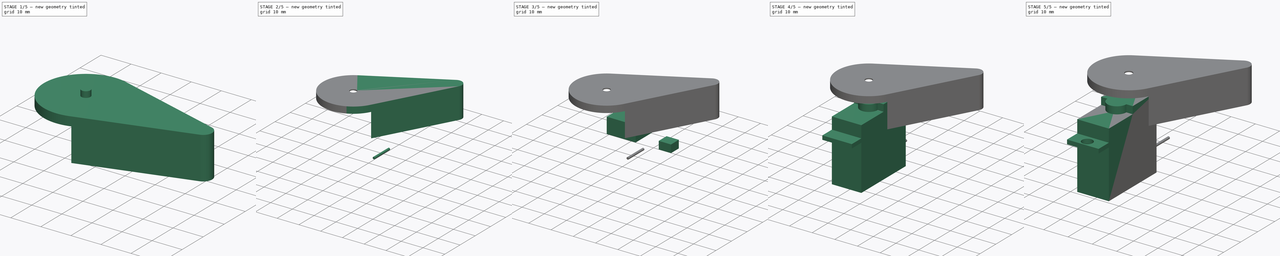
[diagram: build sequence overview — one tinted view per stage of 5, left to right]
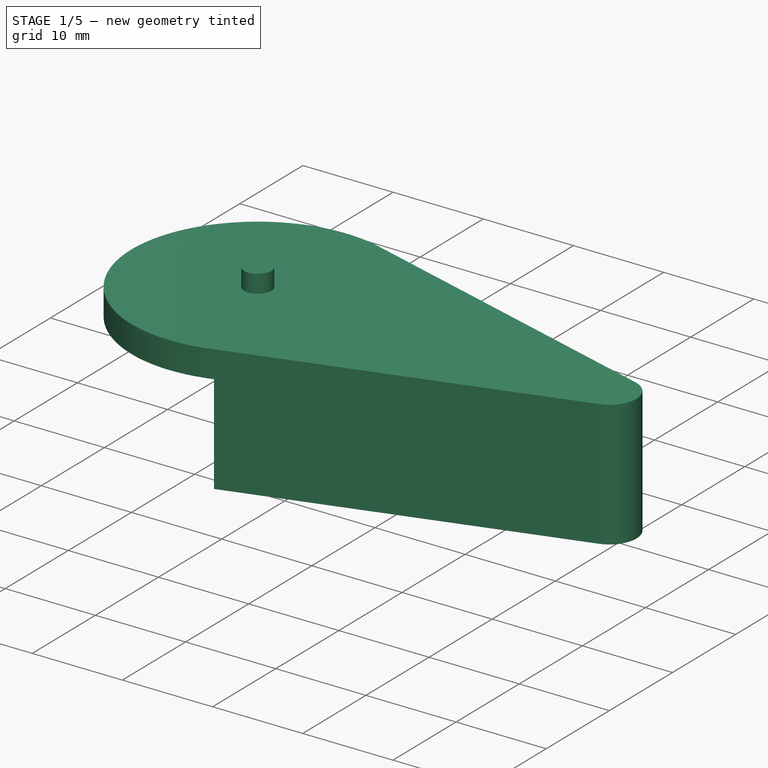
[diagram: stage 1 of 5 — iso view after this stage's code; geometry added in this stage tinted green]
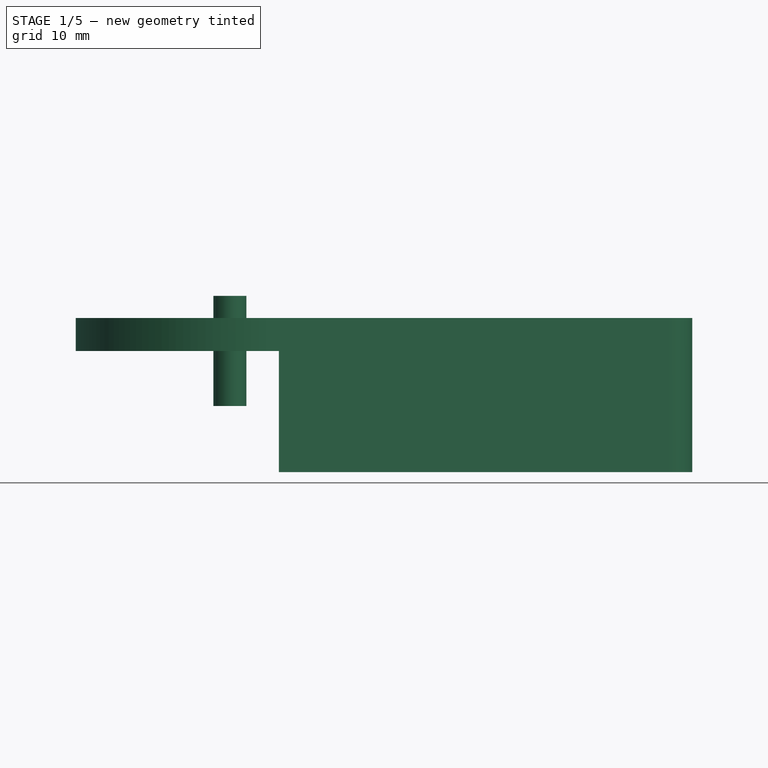
[diagram: stage 1 of 5 — front view after this stage's code; geometry added in this stage tinted green]
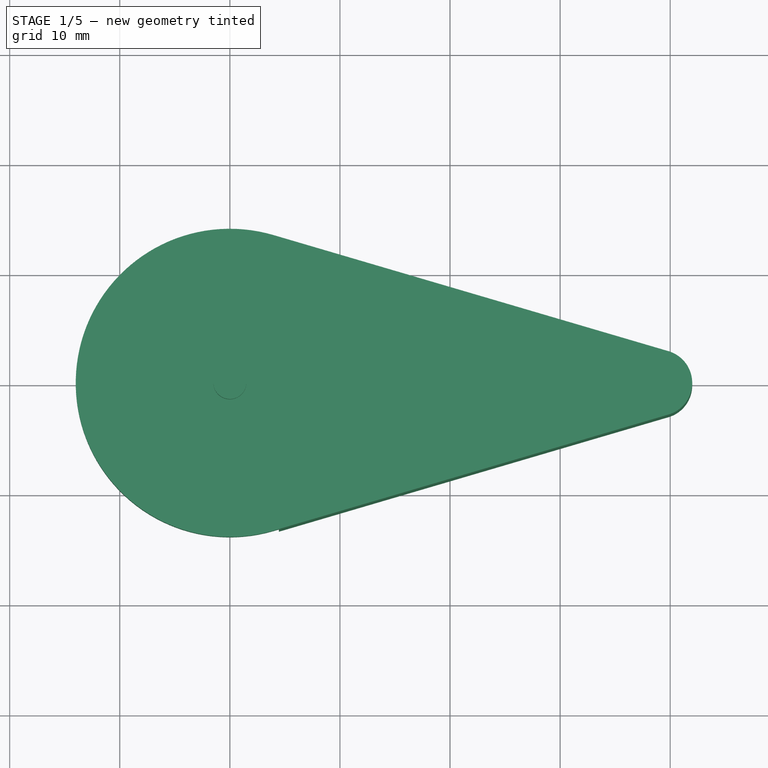
[diagram: stage 1 of 5 — top view after this stage's code; geometry added in this stage tinted green]
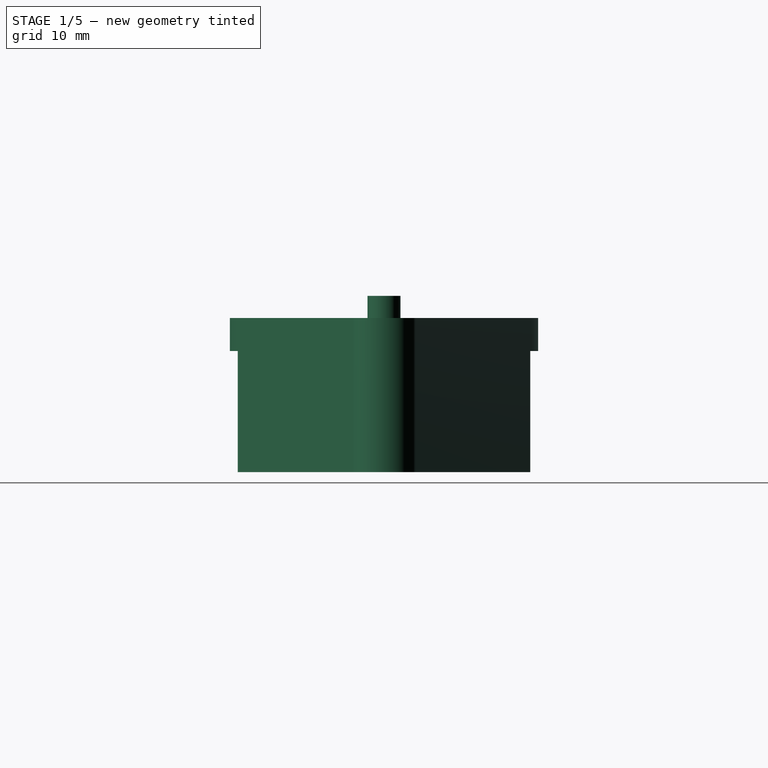
[diagram: stage 1 of 5 — right view after this stage's code; geometry added in this stage tinted green]
FCSTD DOCUMENT  (FreeCAD 0.17R13541 (Git))
Label: Servo HD1160A
License: CreativeCommons Attribution
LicenseURL: http://creativecommons.org/licenses/by/4.0/
objects: Part::Cylinder×7, Part::Feature×7, Part::Box×5, Part::Cut×4, Part::MultiFuse×2, Part::Mirroring×1, Sketcher::SketchObject×1, PartDesign::Pad×1, PartDesign::Body×1, App::DocumentObjectGroup×1
note: 30 computed .brp shape members not serialized (recipe doc carries the construction recipe); baked Part::Feature solids carry a one-line shape summary decoded from their .brp

FEATURE [Part::Feature] Cylinder004001  label="cable rojo"
  Placement = pos=(0,22,5.75) rot=(1,0,0;1.5708rad)
  shape: bbox 1 x 10 x 1 mm, 3 faces (baked)
FEATURE [Part::Feature] Cylinder004002  label="cable naranja"
  Placement = pos=(-1,22,5.75) rot=(1,0,0;1.5708rad)
  shape: bbox 1 x 10 x 1 mm, 3 faces (baked)
FEATURE [Part::Feature] Cut001  label="Servo HD1160A"
  Placement = pos=(0,-7,0) rot=(0,0,1;0rad)
  shape: bbox 13 x 40 x 34 mm, 29 faces (baked)
FEATURE [Sketcher::SketchObject] Sketch  label="perfil pala"
  MapMode = 5
  Support = -> [XY_Plane]
  sketch-geometry (4):
    g0: ArcOfCircle CenterX=0 CenterY=0 CenterZ=0 NormalX=0 NormalY=0 NormalZ=1 AngleXU=0 Radius=14 StartAngle=1.28486 EndAngle=4.99832
    g1: ArcOfCircle CenterX=39 CenterY=0 CenterZ=0 NormalX=0 NormalY=0 NormalZ=1 AngleXU=0 Radius=3 StartAngle=4.99832 EndAngle=7.56805
    g2: LineSegment StartX=3.94872 StartY=13.4316 StartZ=0 EndX=39.8462 EndY=2.8782 EndZ=0
    g3: LineSegment StartX=3.94872 StartY=-13.4316 StartZ=0 EndX=39.8462 EndY=-2.8782 EndZ=0
  constraints (9):
    c: Coincident(g0,g-1)
    c: PointOnObject(g1,g-1)
    c: Tangent(g2,g0) = 1.5708
    c: Tangent(g3,g0) = -1.5708
    c: Tangent(g2,g1) = 1.5708
    c: Tangent(g3,g1) = -1.5708
    c: Radius(g0) = 14
    c: Radius(g1) = 3
    c: DistanceX(g1) = 39
FEATURE [PartDesign::Pad] Pad  label="Pala estruida en bruto"
  Length = 14
  Length2 = 100
  Profile = -> Sketch
  Type = 0
FEATURE [PartDesign::Body] Body
  Group = -> [Sketch,Pad]
  Origin = -> Origin
  Tip = -> Pad
FEATURE [Part::Cylinder] Cylinder004003  label="Vaciado central pala"
  Angle = 360
  AttacherType = Attacher::AttachEngine3D
  Height = 15
  Placement = pos=(0,0,-4) rot=(0,0,1;0rad)
  Radius = 14.01
FEATURE [Part::Cut] Cut002  label="Pala sin cilindro central"
  Base = -> Pad
  Placement = pos=(0,0,24) rot=(0,0,1;0rad)
  Refine = true
  Tool = -> Cylinder004003
FEATURE [Part::Feature] Cylinder004004  label="cable marron"
  Placement = pos=(1,22,5.75) rot=(1,0,0;1.5708rad)
  shape: bbox 1 x 10 x 1 mm, 3 faces (baked)
FEATURE [Part::Cylinder] Cylinder004005  label="paso central tornillo pala"
  Angle = 360
  AttacherType = Attacher::AttachEngine3D
  Height = 10
  Placement = pos=(0,0,30) rot=(0,0,1;0rad)
  Radius = 1.5
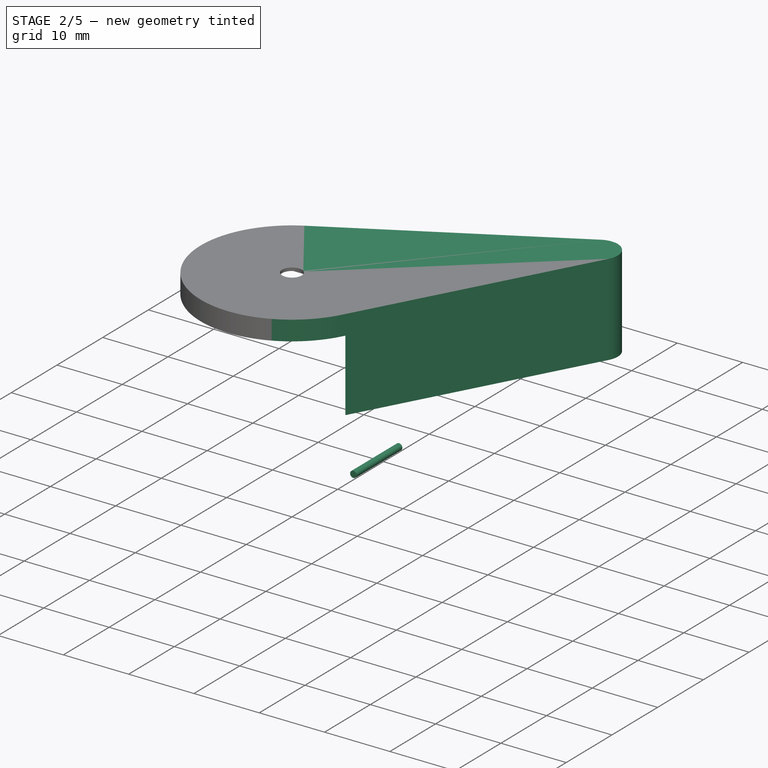
[diagram: stage 2 of 5 — iso view after this stage's code; geometry added in this stage tinted green]
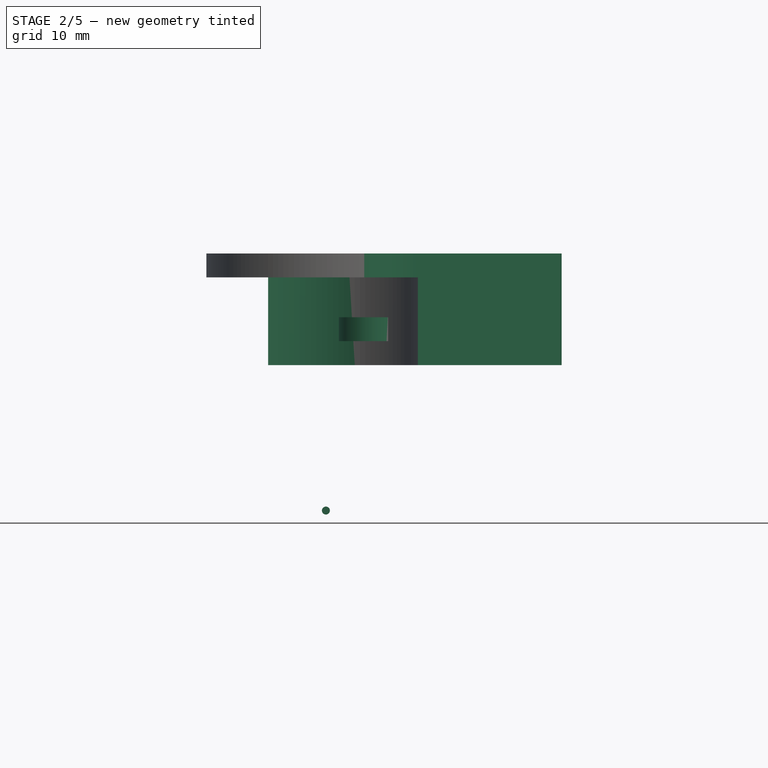
[diagram: stage 2 of 5 — front view after this stage's code; geometry added in this stage tinted green]
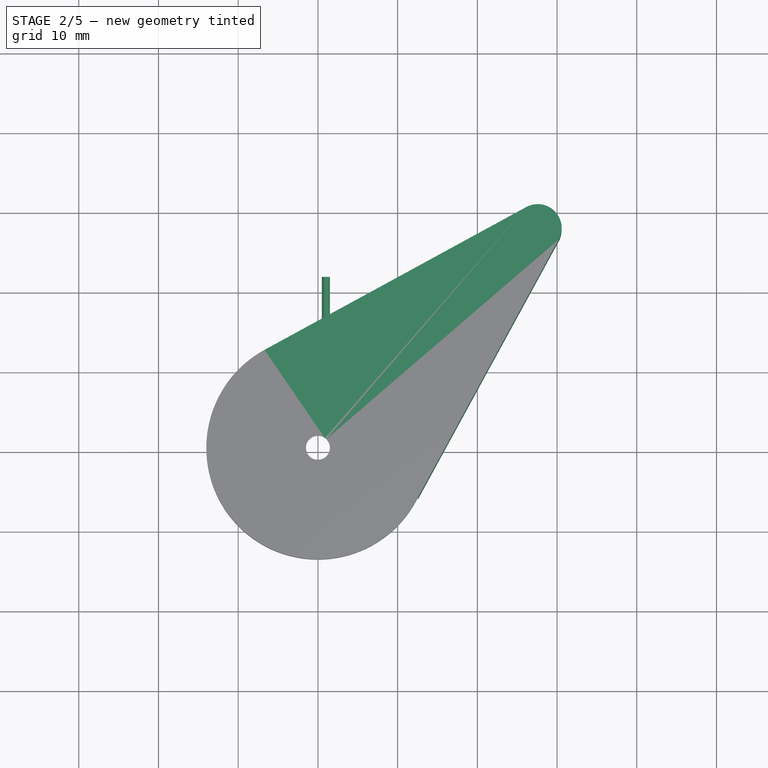
[diagram: stage 2 of 5 — top view after this stage's code; geometry added in this stage tinted green]
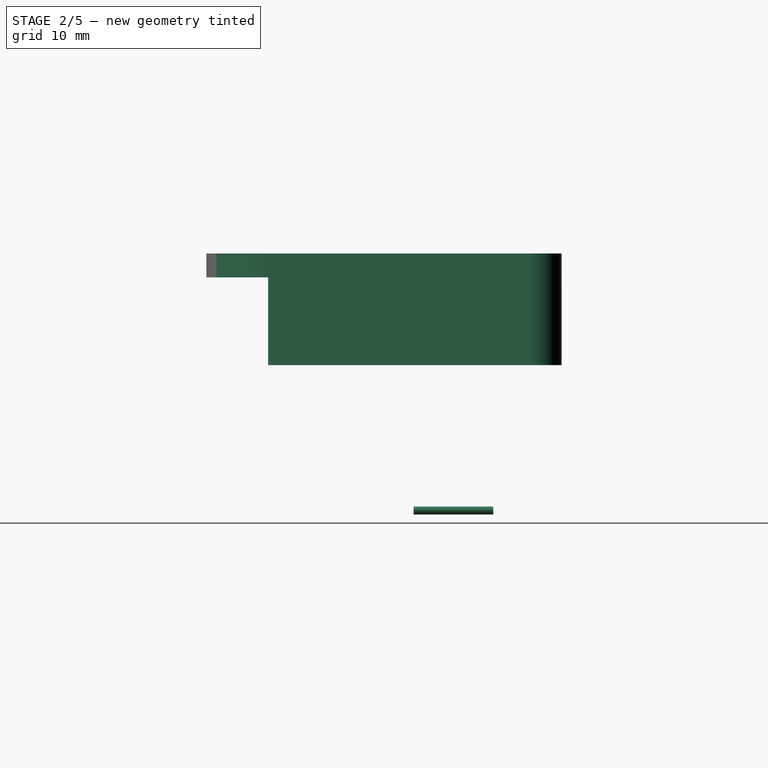
[diagram: stage 2 of 5 — right view after this stage's code; geometry added in this stage tinted green]
FEATURE [Part::Cylinder] Cylinder003  label="semimeseta"
  Angle = 180
  AttacherType = Attacher::AttachEngine3D
  Height = 3
  Placement = pos=(6.5,14,27) rot=(0,0,1;3.14159rad)
  Radius = 3.875
FEATURE [Part::Cylinder] Cylinder004  label="cable master"
  Angle = 360
  AttacherType = Attacher::AttachEngine3D
  Height = 10
  Placement = pos=(1,22,5.75) rot=(1,0,0;1.5708rad)
  Radius = 0.5
FEATURE [Part::Feature] Fillet002  label="Soporte 4 palas servo HD1160"
  Placement = pos=(0,0,35) rot=(0,0,1;0.785398rad)
  shape: bbox 19.41 x 19.41 x 5.52 mm, 39 faces (baked)
FEATURE [Part::Feature] Fusion003001  label="Fusion soporte 4 palas para hacer huecos"
  Placement = pos=(0,0,35) rot=(0,0,1;0rad)
  shape: bbox 26.5 x 26.5 x 2.52 mm, 20 faces (baked)
FEATURE [Part::Cut] Cut003  label="Pala pinball master sin paso tornillo"
  Base = -> Cut002
  Placement = pos=(0,0,0) rot=(0,0,1;0.785398rad)
  Refine = true
  Tool = -> Fusion003001
FEATURE [Part::Cut] Cut003002  label="Pala pinball master"
  Base = -> Cut003
  Refine = true
  Tool = -> Cylinder004005
FEATURE [Part::Feature] Cut003002001  label="Pala pinball"
  shape: bbox 44.58 x 44.58 x 14 mm, 28 faces (baked)
FEATURE [App::DocumentObjectGroup] Grupo  label="Copia simple Piezas Servo HD1160A"
  Group = -> [Cut001,Fillet002,Cylinder004002,Cylinder004001,Cylinder004004,Cut003002001]
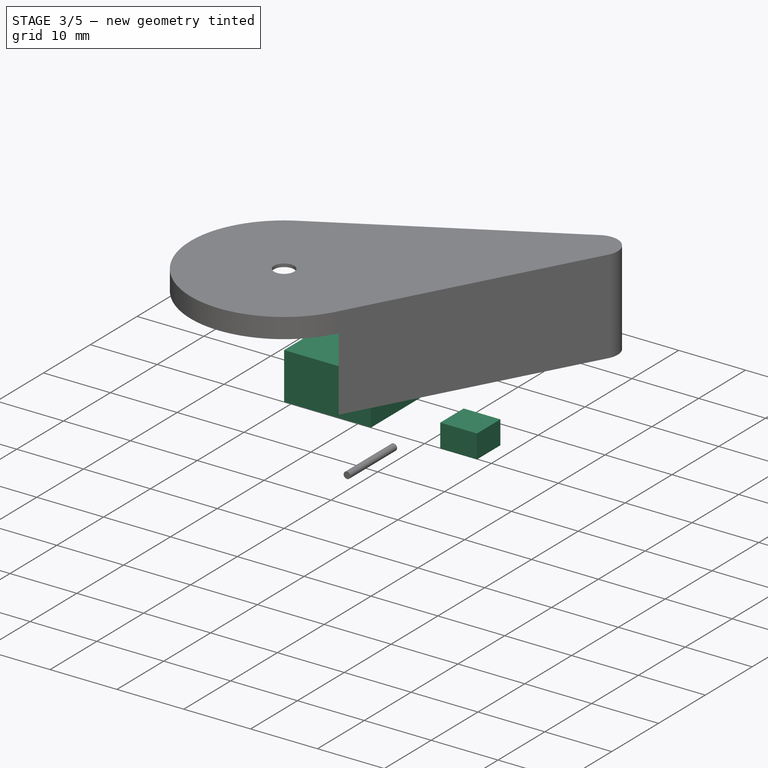
[diagram: stage 3 of 5 — iso view after this stage's code; geometry added in this stage tinted green]
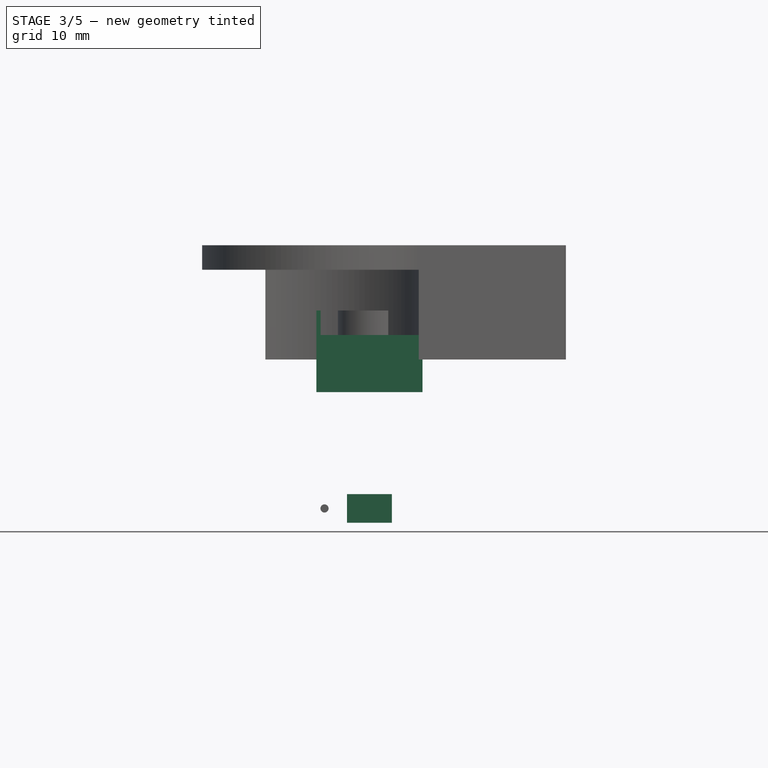
[diagram: stage 3 of 5 — front view after this stage's code; geometry added in this stage tinted green]
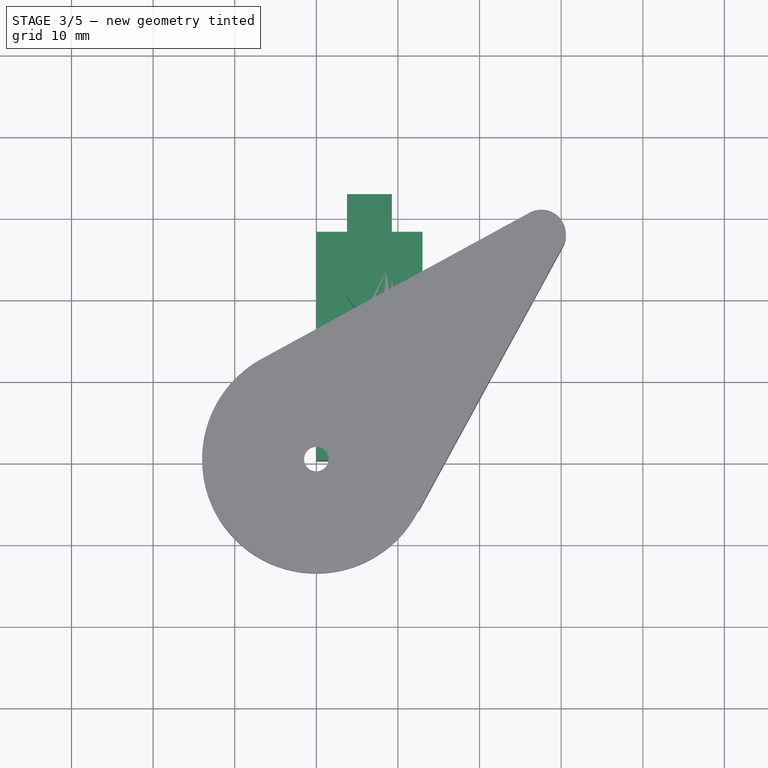
[diagram: stage 3 of 5 — top view after this stage's code; geometry added in this stage tinted green]
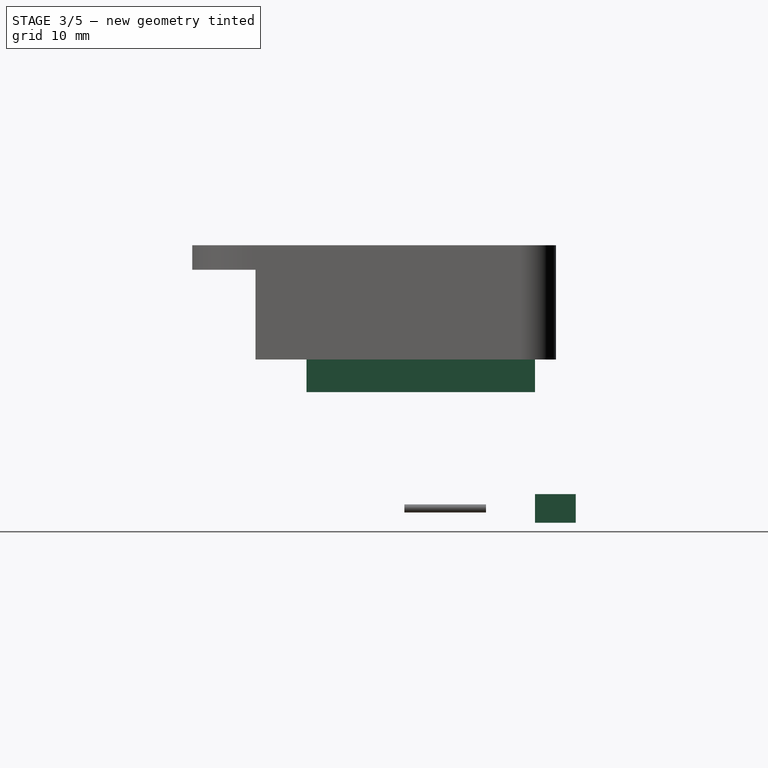
[diagram: stage 3 of 5 — right view after this stage's code; geometry added in this stage tinted green]
FEATURE [Part::Box] Box002  label="Cubo eje"
  AttacherType = Attacher::AttachEngine3D
  Height = 10
  Length = 13
  Placement = pos=(0,14,20) rot=(0,0,1;0rad)
  Width = 14
FEATURE [Part::Box] Box003  label="resalte superior"
  AttacherType = Attacher::AttachEngine3D
  Height = 7
  Length = 13
  Placement = pos=(0,0,20) rot=(0,0,1;0rad)
  Width = 14
FEATURE [Part::Cylinder] Cylinder  label="Cilindro"
  Angle = 360
  AttacherType = Attacher::AttachEngine3D
  Height = 4
  Placement = pos=(6.5,21,30) rot=(0,0,1;0rad)
  Radius = 2.9
FEATURE [Part::Box] Box004  label="Salida de cableado"
  AttacherType = Attacher::AttachEngine3D
  Height = 3.5
  Length = 5.5
  Placement = pos=(3.75,28,4) rot=(0,0,1;0rad)
  Width = 5
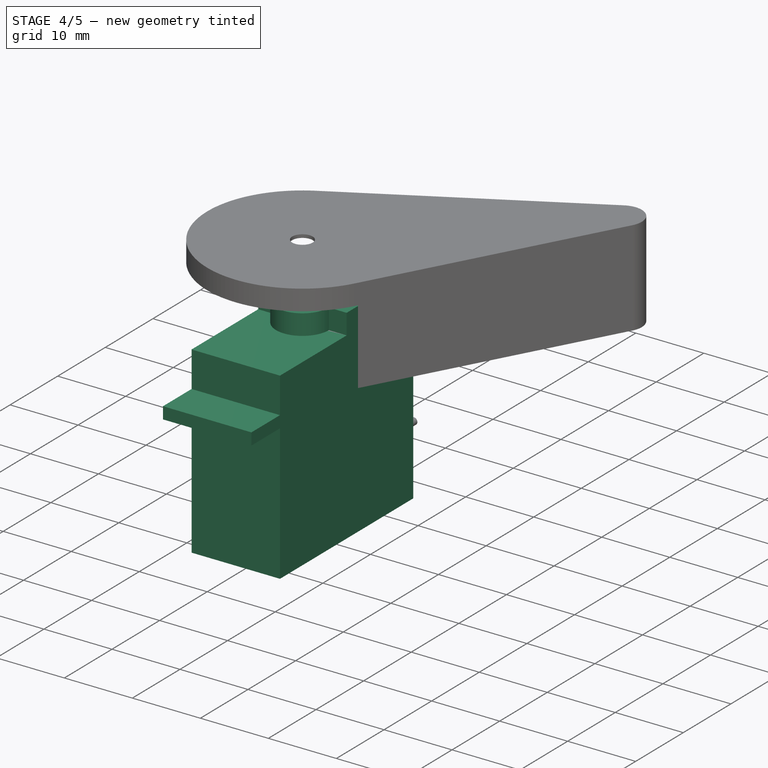
[diagram: stage 4 of 5 — iso view after this stage's code; geometry added in this stage tinted green]
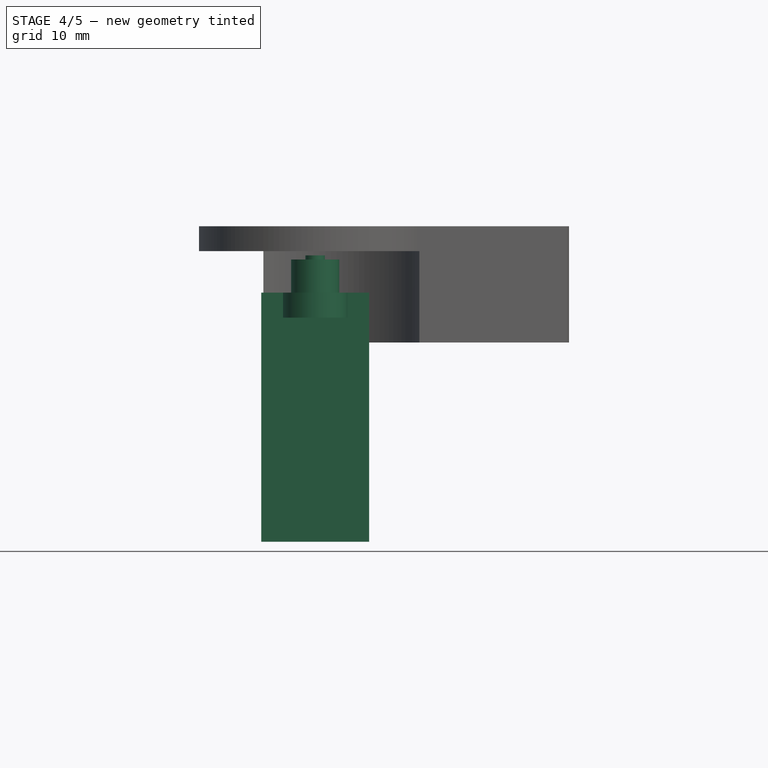
[diagram: stage 4 of 5 — front view after this stage's code; geometry added in this stage tinted green]
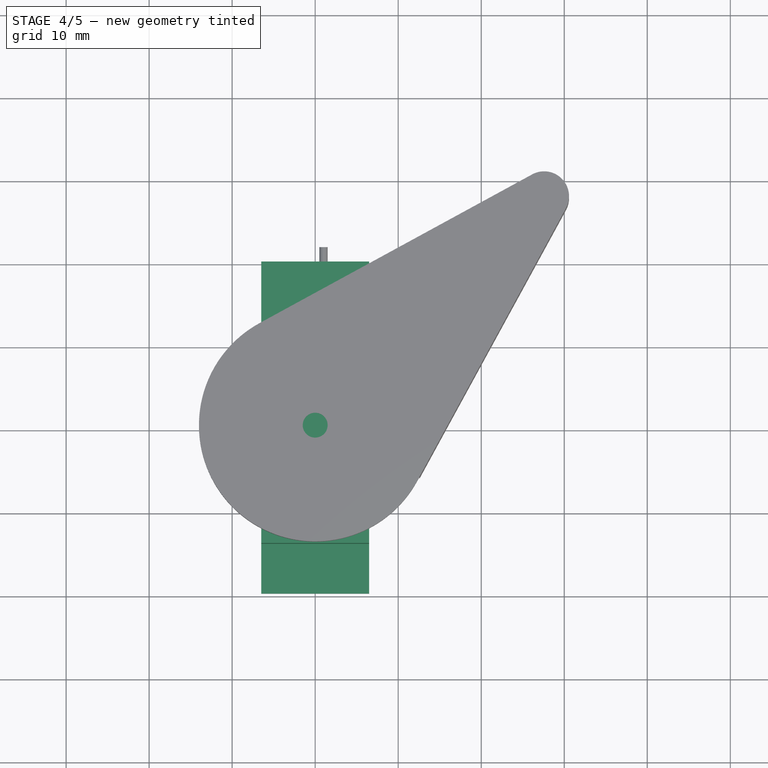
[diagram: stage 4 of 5 — top view after this stage's code; geometry added in this stage tinted green]
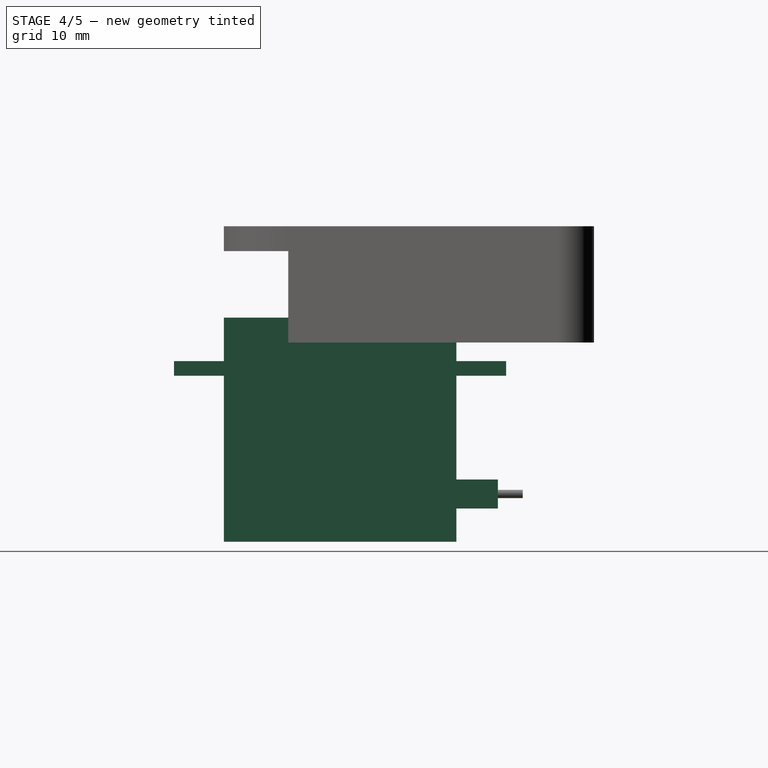
[diagram: stage 4 of 5 — right view after this stage's code; geometry added in this stage tinted green]
FEATURE [Part::Box] Box  label="Cuerpo ppal servo"
  AttacherType = Attacher::AttachEngine3D
  Height = 20
  Length = 13
  Width = 28
FEATURE [Part::Box] Box001  label="Aleta"
  AttacherType = Attacher::AttachEngine3D
  Height = 1.75
  Length = 13
  Placement = pos=(0,-6,20) rot=(0,0,1;0rad)
  Width = 40
FEATURE [Part::Cylinder] Cylinder002  label="Hueco central eje de arrastre"
  Angle = 360
  AttacherType = Attacher::AttachEngine3D
  Height = 5
  Placement = pos=(0,7,29.5) rot=(0,0,1;0rad)
  Radius = 1.175
FEATURE [Part::MultiFuse] Fusion  label="Fusion cuerpo prinicipal"
  Placement = pos=(-6.5,-14,0) rot=(0,0,1;0rad)
  Refine = true
  Shapes = -> [Cylinder003,Box004,Cylinder,Box003,Box002,Box001,Box]
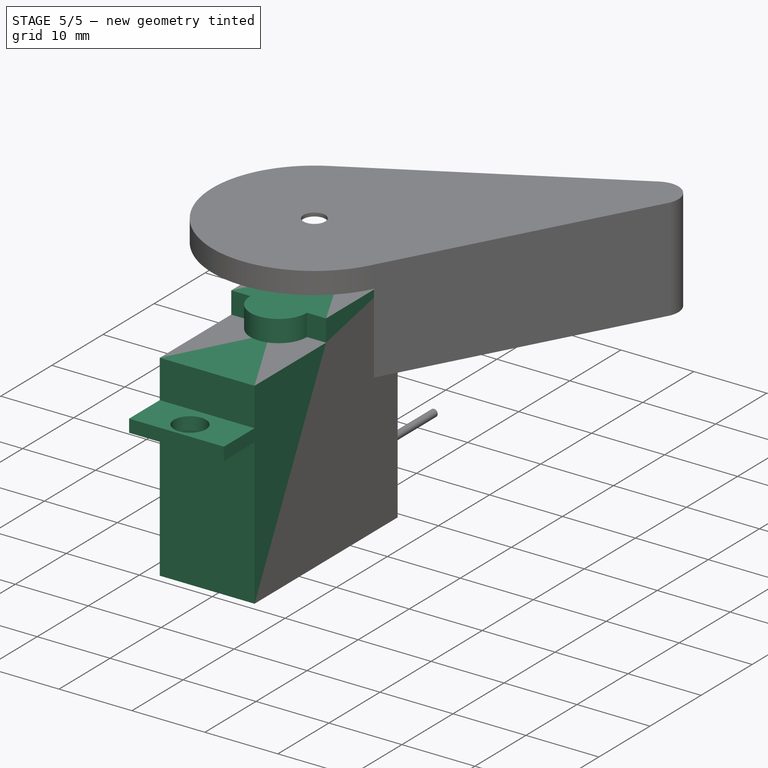
[diagram: stage 5 of 5 — iso view after this stage's code; geometry added in this stage tinted green]
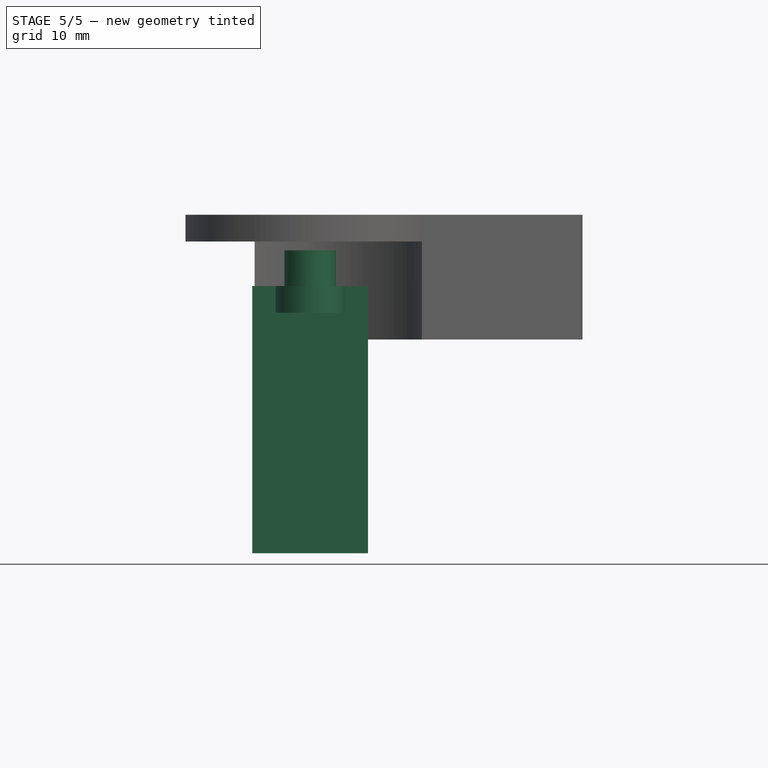
[diagram: stage 5 of 5 — front view after this stage's code; geometry added in this stage tinted green]
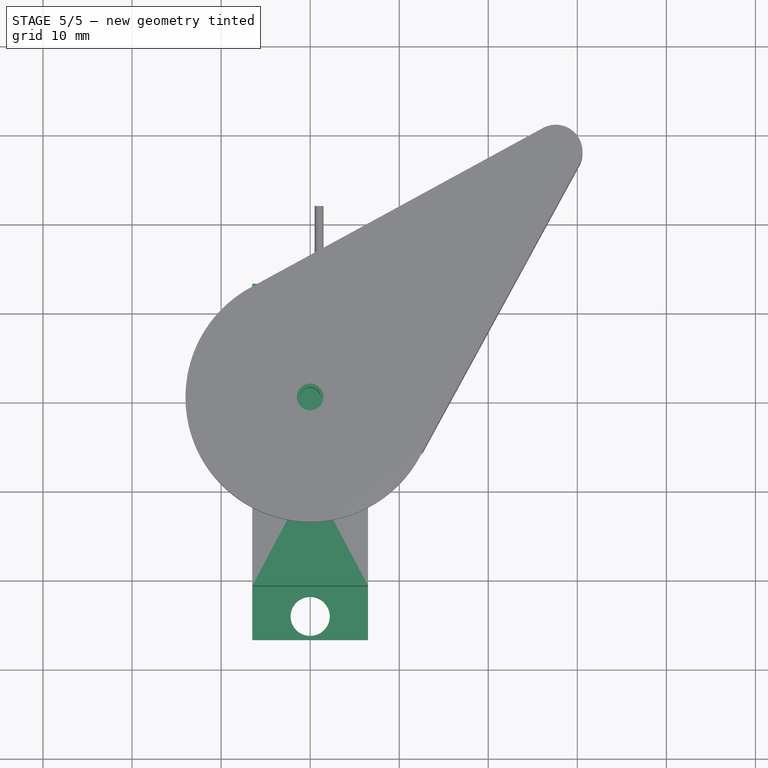
[diagram: stage 5 of 5 — top view after this stage's code; geometry added in this stage tinted green]
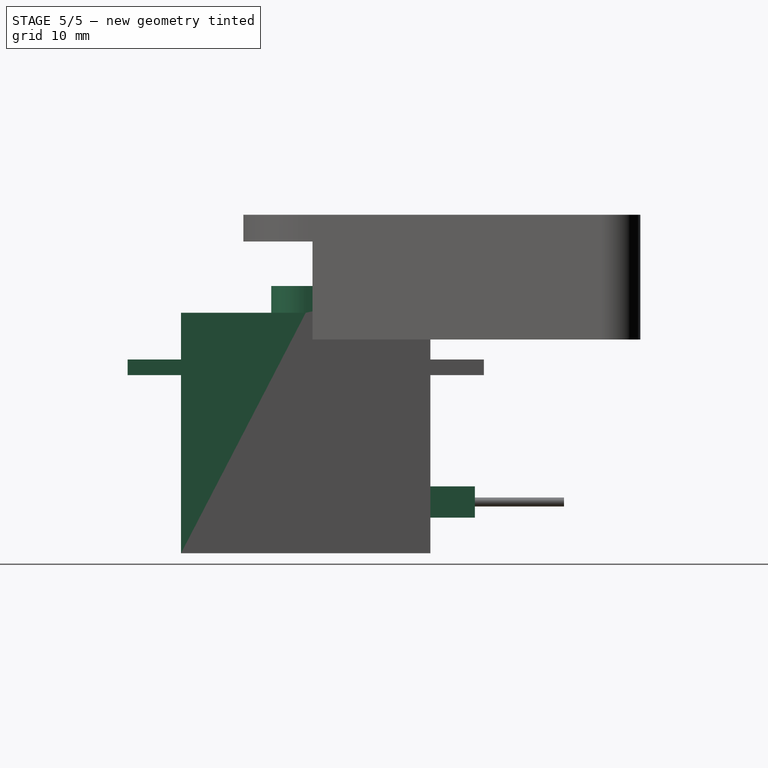
[diagram: stage 5 of 5 — right view after this stage's code; geometry added in this stage tinted green]
FEATURE [Part::Cylinder] Cylinder001  label="Taladro master"
  Angle = 360
  AttacherType = Attacher::AttachEngine3D
  Height = 5
  Placement = pos=(0,-17.35,18) rot=(0,0,1;0rad)
  Radius = 2.2
FEATURE [Part::Mirroring] Part__Mirroring  label="Taladro master (Mirror #1)"
  Base = (0,0,0)
  Normal = (0,1,0)
  Source = -> Cylinder001
FEATURE [Part::MultiFuse] Fusion001  label="Fusion huecos"
  Refine = true
  Shapes = -> [Part__Mirroring,Cylinder001,Cylinder002]
FEATURE [Part::Cut] Cut  label="Servo HD1160A master"
  Base = -> Fusion
  Placement = pos=(0,-7,0) rot=(0,0,1;0rad)
  Refine = true
  Tool = -> Fusion001
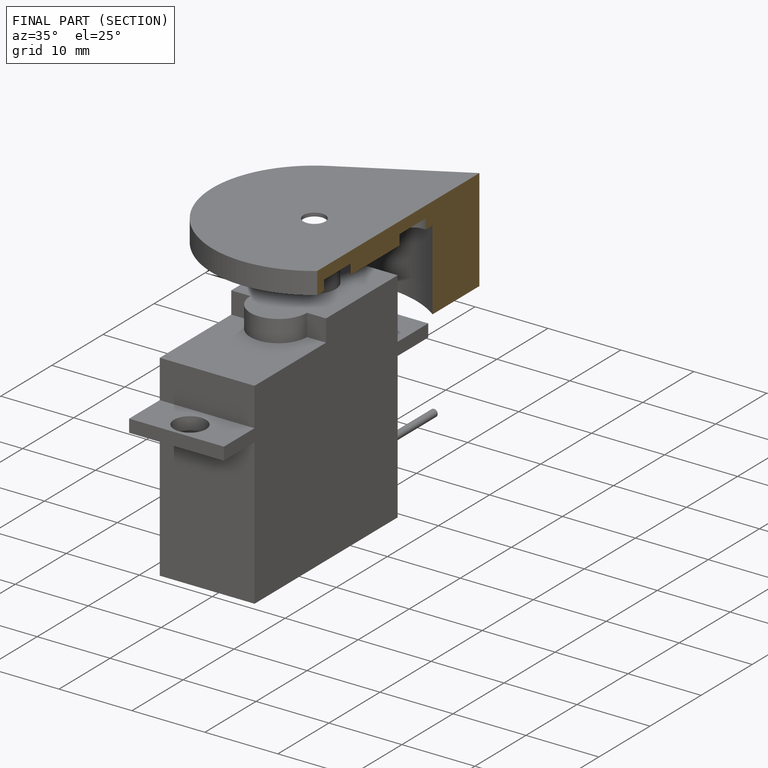
[diagram: finished part — half-section view (interior)]
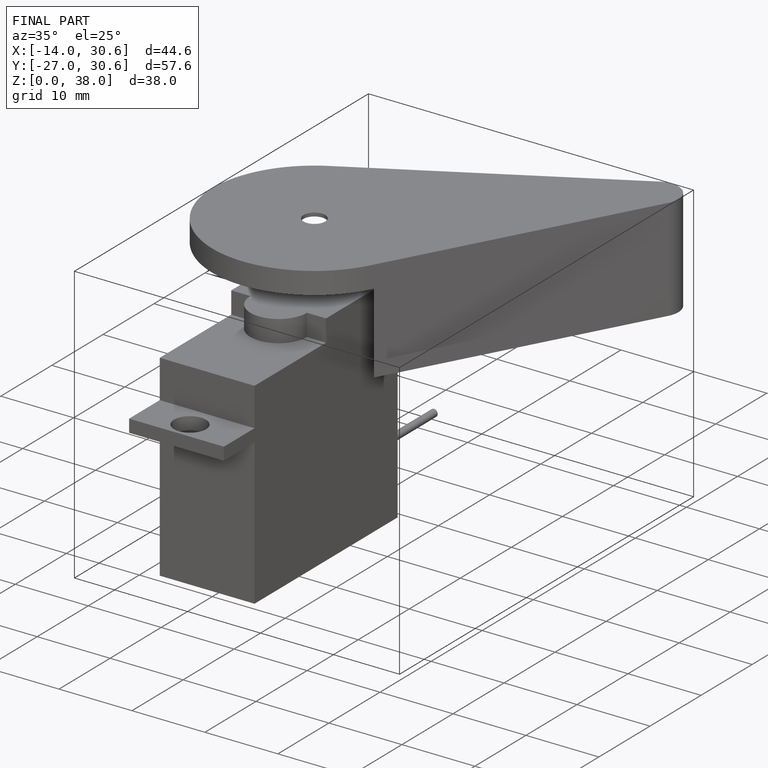
[diagram: finished part — iso view with bounding-box wireframe]
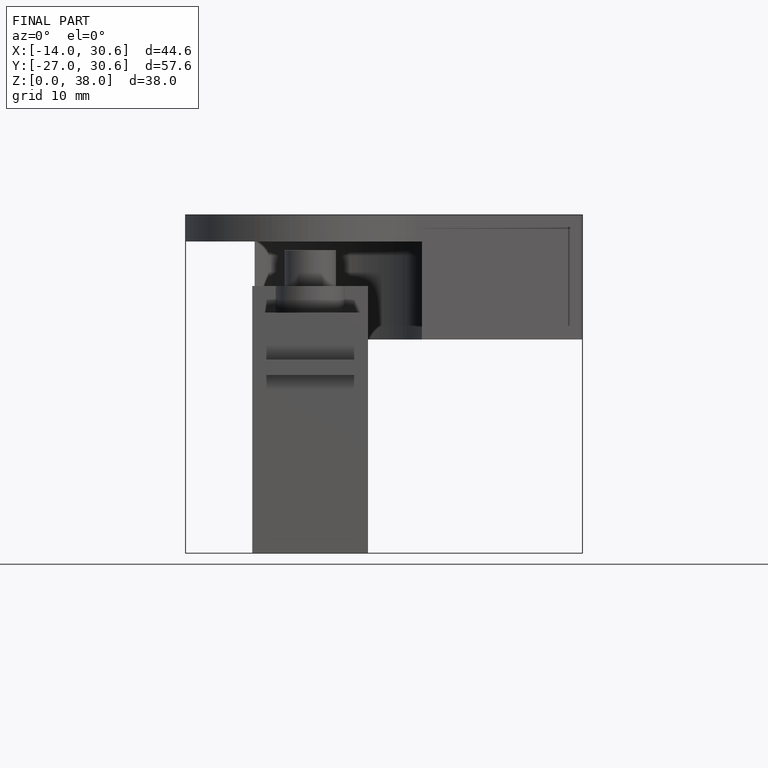
[diagram: finished part — front view with bounding-box wireframe]
